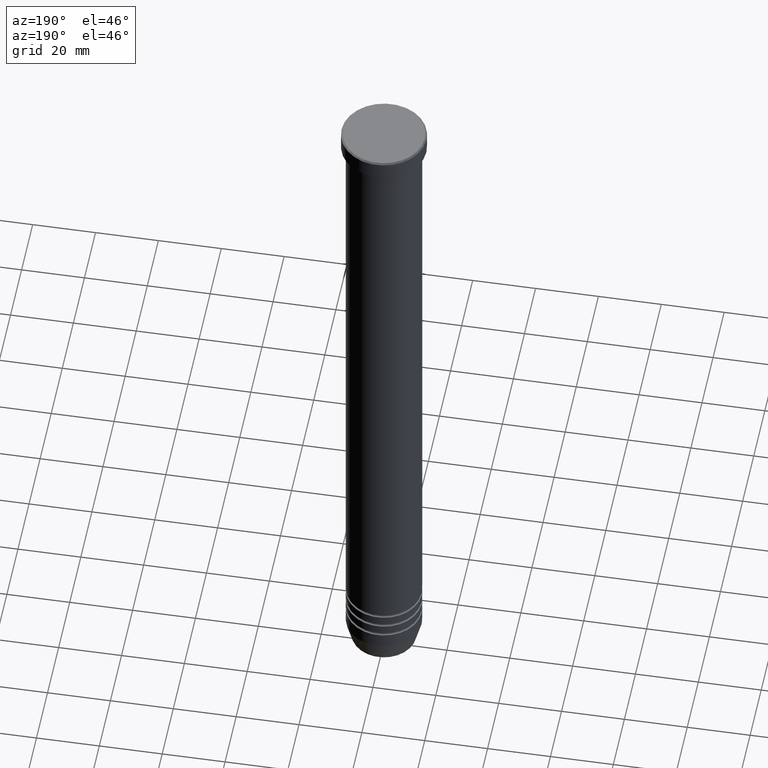
[diagram: clean part render]
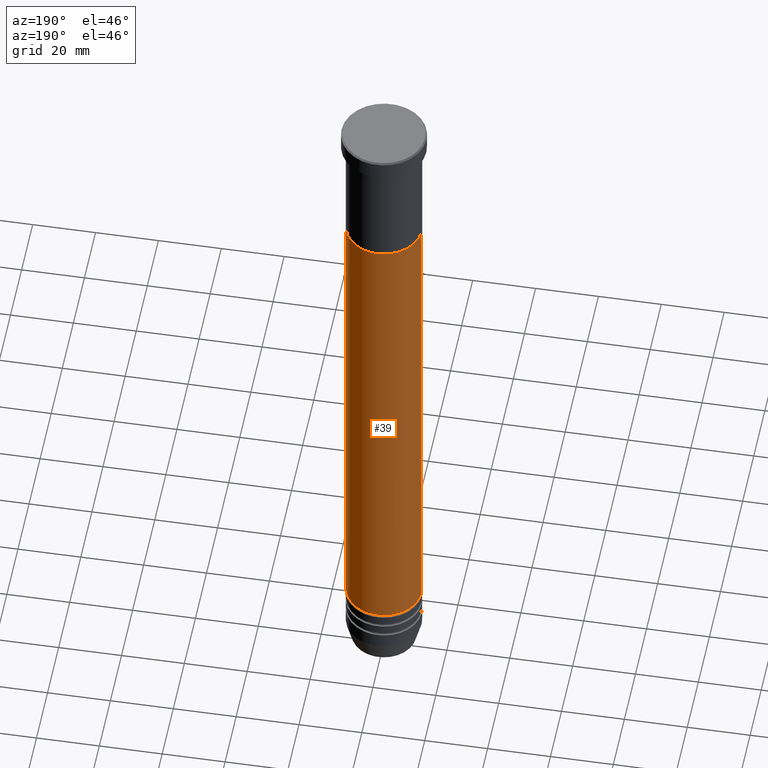
[diagram: same view with one face highlighted and labeled with its STEP entity id]
A machine part, auxiliary view. The second image highlights one B-rep face of the part: STEP entity #39.
In plain terms, the highlighted cylindrical surface (partial cylindrical patch) has radius 12 mm, axis along (-0, -0, 1).
Its self-contained STEP definition (entity closure, byte-faithful):
#29 = CARTESIAN_POINT ( 'NONE',  ( -12.00000000000000178, 1.469576158976824144E-15, -41.99999999999999289 ) ) ;
#39 = ADVANCED_FACE ( 'NONE', ( #177 ), #529, .T. ) ;
#52 = AXIS2_PLACEMENT_3D ( 'NONE', #885, #449, #266 ) ;
#104 = EDGE_CURVE ( 'NONE', #334, #419, #735, .T. ) ;
#163 = DIRECTION ( 'NONE',  ( -0.000000000000000000, -0.000000000000000000, 1.000000000000000000 ) ) ;
#177 = FACE_OUTER_BOUND ( 'NONE', #757, .T. ) ;
#212 = DIRECTION ( 'NONE',  ( -0.000000000000000000, -0.000000000000000000, 1.000000000000000000 ) ) ;
#266 = DIRECTION ( 'NONE',  ( 1.000000000000000000, 0.000000000000000000, 0.000000000000000000 ) ) ;
#294 = DIRECTION ( 'NONE',  ( -0.000000000000000000, -0.000000000000000000, 1.000000000000000000 ) ) ;
#309 = CARTESIAN_POINT ( 'NONE',  ( 11.99999999999999822, 0.000000000000000000, 0.000000000000000000 ) ) ;
#320 = LINE ( 'NONE', #1045, #748 ) ;
#334 = VERTEX_POINT ( 'NONE', #791 ) ;
#345 = CARTESIAN_POINT ( 'NONE',  ( -11.99999999999999467, 1.469576158976823553E-15, -205.0000000000000000 ) ) ;
#384 = CIRCLE ( 'NONE', #1040, 11.99999999999999467 ) ;
#419 = VERTEX_POINT ( 'NONE', #1112 ) ;
#432 = ORIENTED_EDGE ( 'NONE', *, *, #898, .T. ) ;
#438 = EDGE_CURVE ( 'NONE', #334, #879, #384, .T. ) ;
#446 = CIRCLE ( 'NONE', #1036, 12.00000000000000178 ) ;
#449 = DIRECTION ( 'NONE',  ( -0.000000000000000000, -0.000000000000000000, 1.000000000000000000 ) ) ;
#470 = ORIENTED_EDGE ( 'NONE', *, *, #1090, .F. ) ;
#529 = CYLINDRICAL_SURFACE ( 'NONE', #52, 11.99999999999999822 ) ;
#567 = DIRECTION ( 'NONE',  ( 1.000000000000000000, 0.000000000000000000, 0.000000000000000000 ) ) ;
#574 = CARTESIAN_POINT ( 'NONE',  ( 0.000000000000000000, 0.000000000000000000, -41.99999999999999289 ) ) ;
#599 = ORIENTED_EDGE ( 'NONE', *, *, #438, .T. ) ;
#710 = VECTOR ( 'NONE', #1093, 1000.000000000000000 ) ;
#727 = VERTEX_POINT ( 'NONE', #29 ) ;
#735 = LINE ( 'NONE', #309, #710 ) ;
#736 = ORIENTED_EDGE ( 'NONE', *, *, #104, .F. ) ;
#748 = VECTOR ( 'NONE', #163, 1000.000000000000000 ) ;
#757 = EDGE_LOOP ( 'NONE', ( #599, #432, #470, #736 ) ) ;
#791 = CARTESIAN_POINT ( 'NONE',  ( 11.99999999999999467, 0.000000000000000000, -205.0000000000000000 ) ) ;
#879 = VERTEX_POINT ( 'NONE', #345 ) ;
#885 = CARTESIAN_POINT ( 'NONE',  ( 0.000000000000000000, 0.000000000000000000, 0.000000000000000000 ) ) ;
#896 = CARTESIAN_POINT ( 'NONE',  ( 0.000000000000000000, 0.000000000000000000, -205.0000000000000000 ) ) ;
#898 = EDGE_CURVE ( 'NONE', #879, #727, #320, .T. ) ;
#1026 = DIRECTION ( 'NONE',  ( 1.000000000000000000, 0.000000000000000000, 0.000000000000000000 ) ) ;
#1036 = AXIS2_PLACEMENT_3D ( 'NONE', #574, #212, #567 ) ;
#1040 = AXIS2_PLACEMENT_3D ( 'NONE', #896, #294, #1026 ) ;
#1045 = CARTESIAN_POINT ( 'NONE',  ( -11.99999999999999822, 1.469576158976823750E-15, 0.000000000000000000 ) ) ;
#1090 = EDGE_CURVE ( 'NONE', #419, #727, #446, .T. ) ;
#1093 = DIRECTION ( 'NONE',  ( -0.000000000000000000, -0.000000000000000000, 1.000000000000000000 ) ) ;
#1112 = CARTESIAN_POINT ( 'NONE',  ( 12.00000000000000178, 0.000000000000000000, -41.99999999999999289 ) ) ;